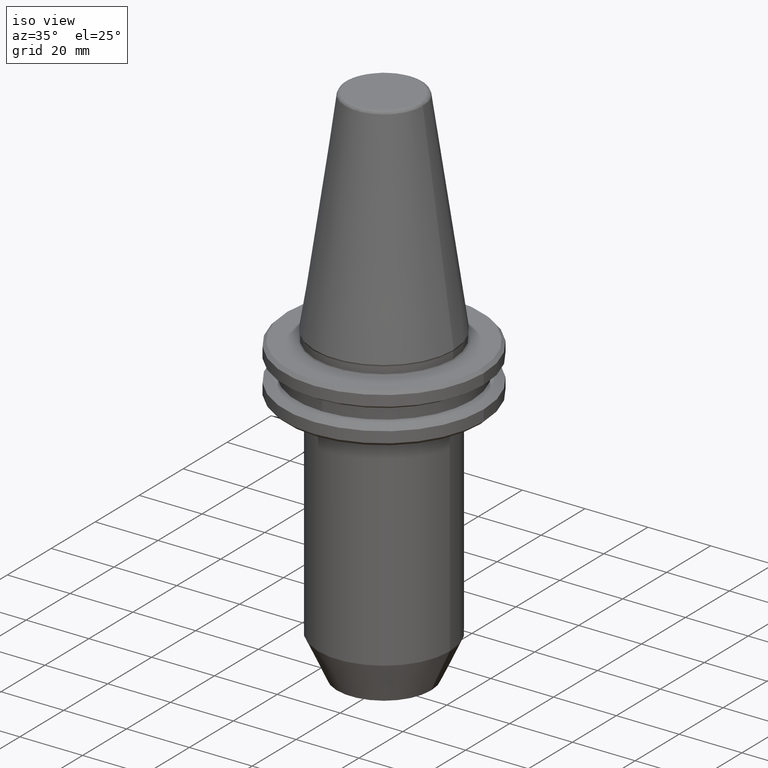
[diagram: clean part render]
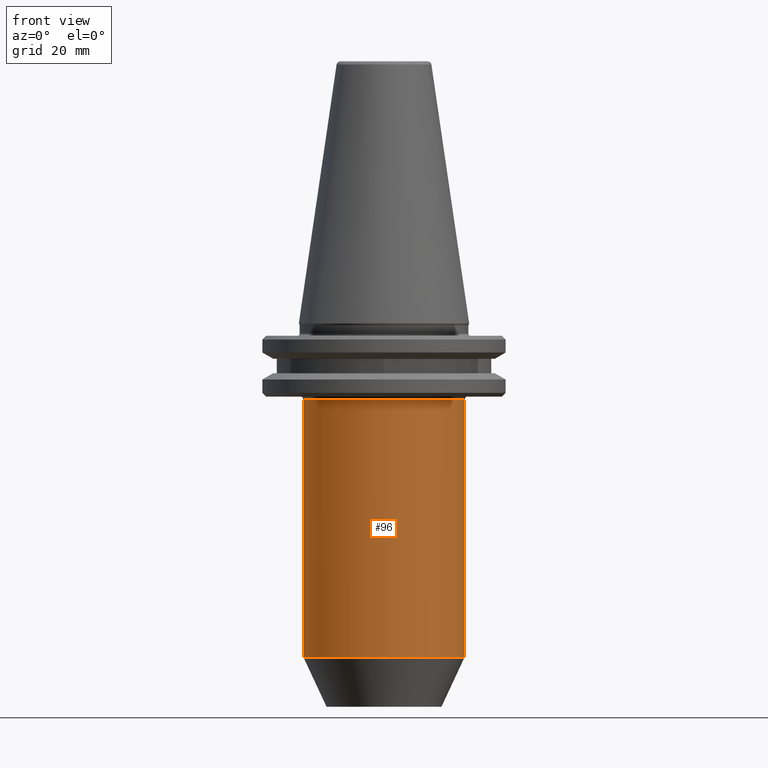
[diagram: tour spotlight — one face highlighted and labeled with its STEP entity id]
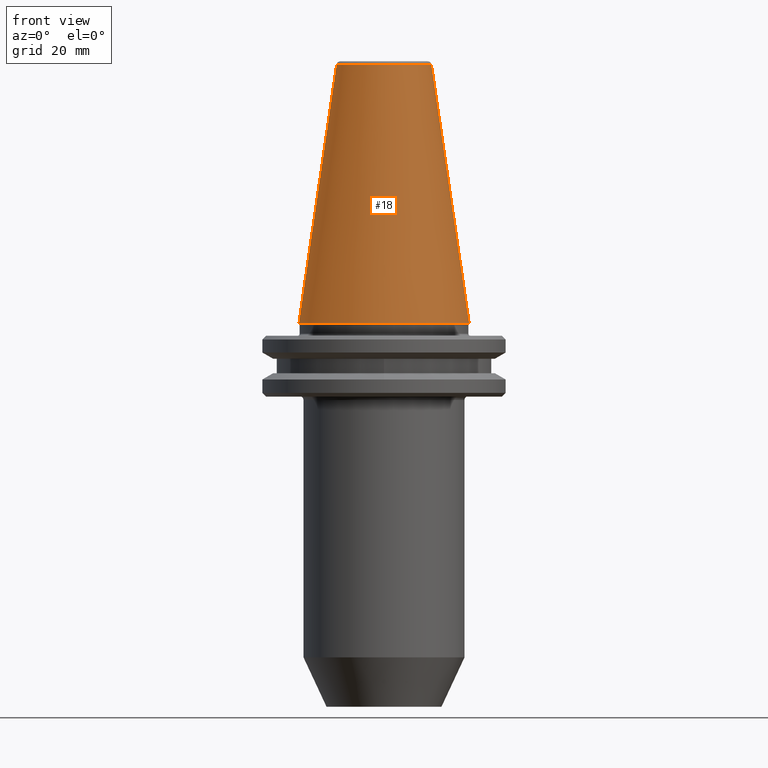
[diagram: tour spotlight — one face highlighted and labeled with its STEP entity id]
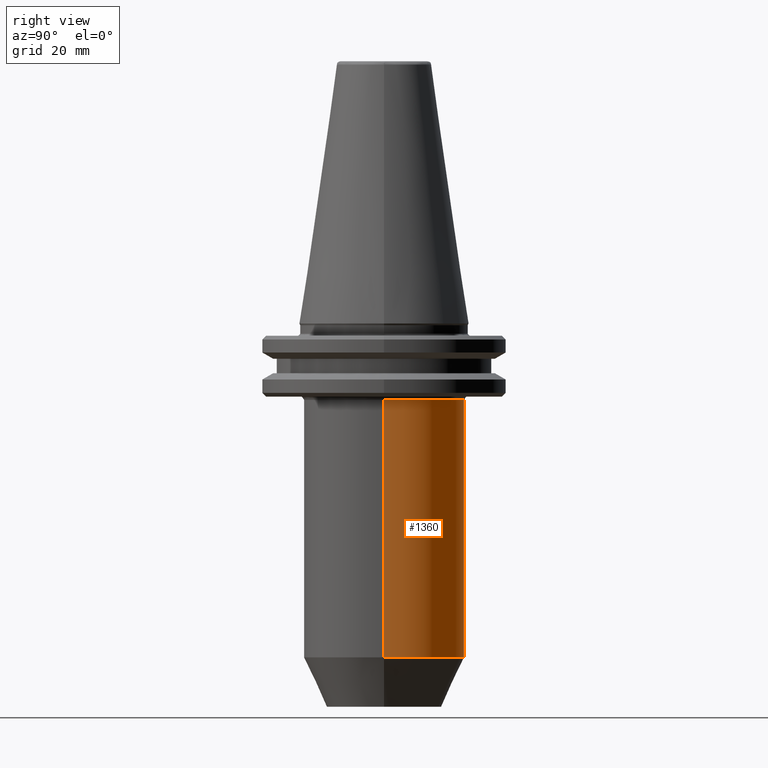
[diagram: tour spotlight — one face highlighted and labeled with its STEP entity id]
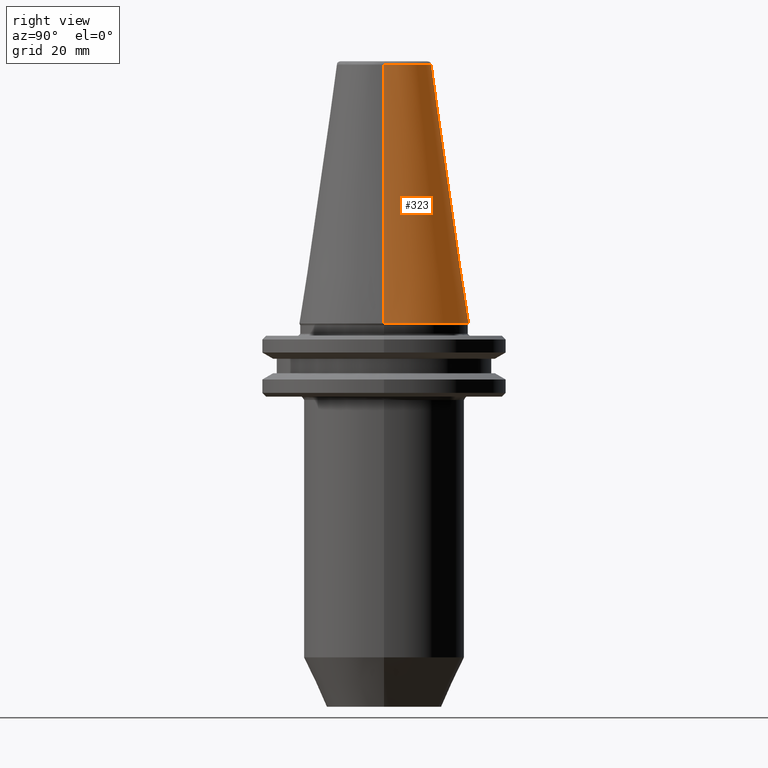
[diagram: tour spotlight — one face highlighted and labeled with its STEP entity id]
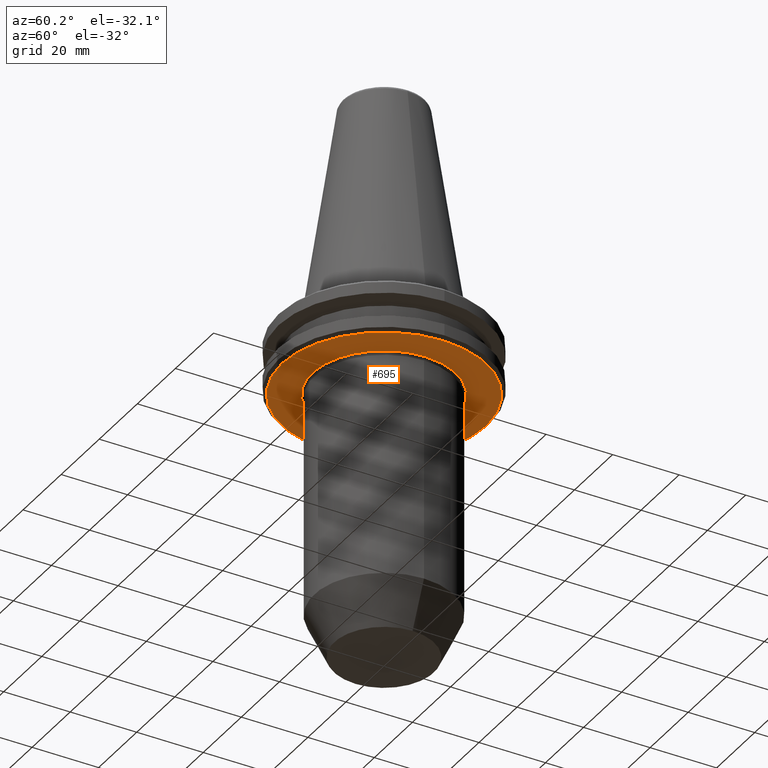
[diagram: tour spotlight — one face highlighted and labeled with its STEP entity id]
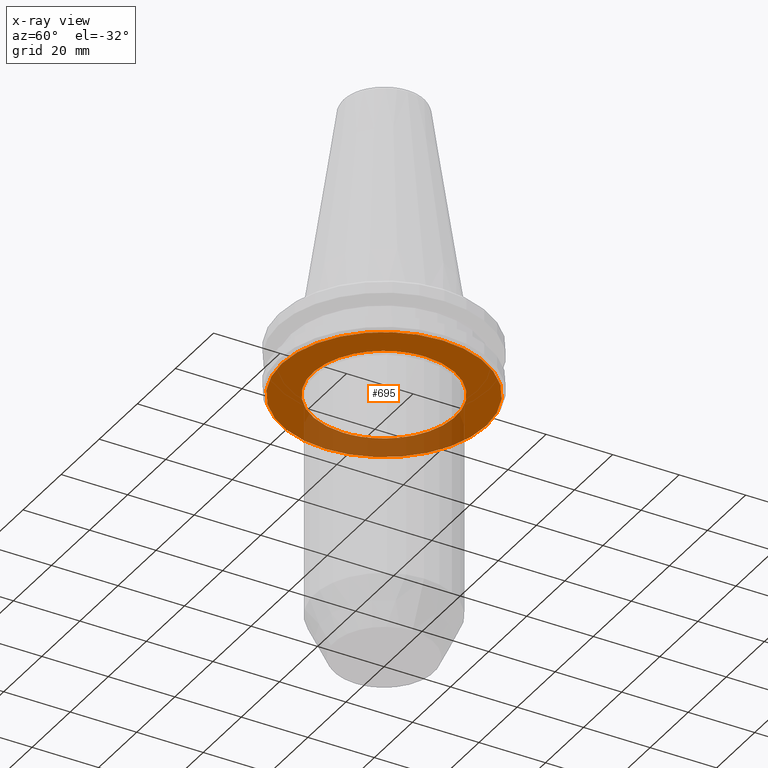
[diagram: x-ray of the same camera — body ghosted, this tour face saturated]
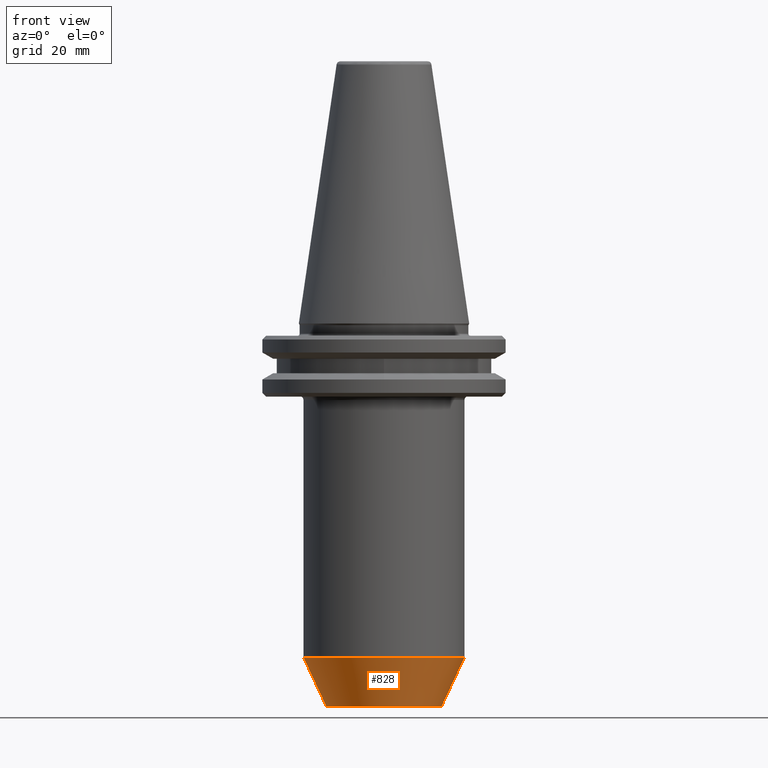
[diagram: tour spotlight — one face highlighted and labeled with its STEP entity id]
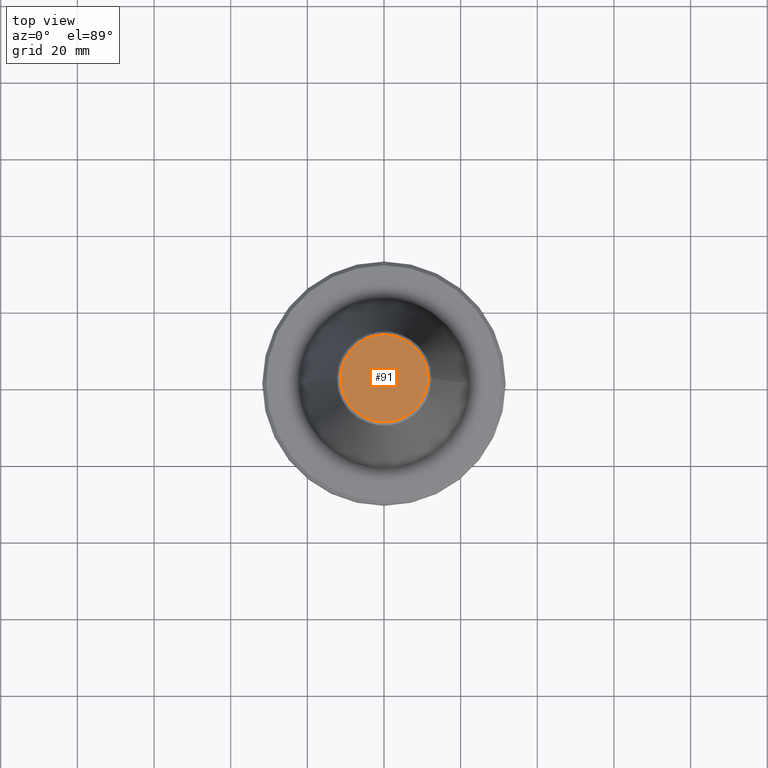
[diagram: tour spotlight — one face highlighted and labeled with its STEP entity id]
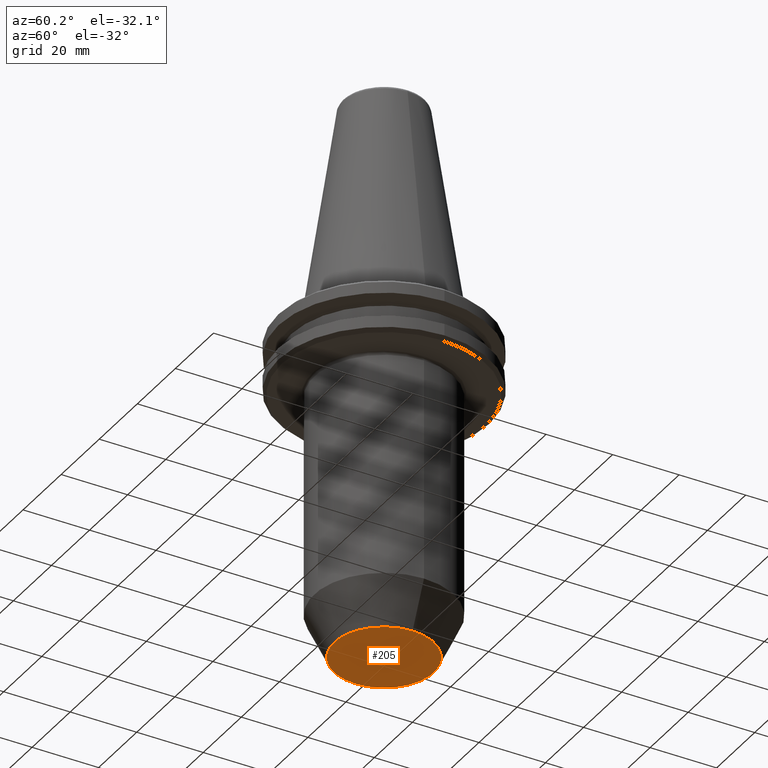
[diagram: tour spotlight — one face highlighted and labeled with its STEP entity id]
A machine part: a face-by-face anatomy tour. The part has 36 B-rep faces; the first image is the clean iso view, then the 8 largest visible faces are spotlighted one at a time (largest first), each with its STEP entity span.

Face 1 — front view, entity #96. In plain terms, the highlighted cylindrical surface (partial cylindrical patch) has radius 21 mm, axis along (0, 0, 1).
Definition (entity closure, byte-faithful):
#24 = CARTESIAN_POINT ( 'NONE',  ( -20.99999999999999300, 2.571758278209440900E-015, -87.13295847700000300 ) ) ;
#28 = DIRECTION ( 'NONE',  ( 1.000000000000000000, 0.0000000000000000000, 0.0000000000000000000 ) ) ;
#29 = DIRECTION ( 'NONE',  ( -0.0000000000000000000, -0.0000000000000000000, -1.000000000000000000 ) ) ;
#32 = CARTESIAN_POINT ( 'NONE',  ( 0.0000000000000000000, 0.0000000000000000000, -19.98284271250540200 ) ) ;
#71 = CYLINDRICAL_SURFACE ( 'NONE', #200, 21.00000000000000000 ) ;
#96 = ADVANCED_FACE ( 'NONE', ( #1032 ), #71, .T. ) ;
#108 = EDGE_CURVE ( 'NONE', #1048, #634, #389, .T. ) ;
#116 = CARTESIAN_POINT ( 'NONE',  ( 20.99999999999999300, 0.0000000000000000000, -87.13295847700000300 ) ) ;
#180 = VERTEX_POINT ( 'NONE', #968 ) ;
#200 = AXIS2_PLACEMENT_3D ( 'NONE', #1237, #1133, #1246 ) ;
#264 = DIRECTION ( 'NONE',  ( 0.0000000000000000000, 0.0000000000000000000, 1.000000000000000000 ) ) ;
#293 = EDGE_CURVE ( 'NONE', #1195, #1048, #697, .T. ) ;
#305 = CARTESIAN_POINT ( 'NONE',  ( 21.00000000015499100, -2.571758278209441700E-015, -19.98284271252224900 ) ) ;
#347 = VECTOR ( 'NONE', #264, 1000.000000000000000 ) ;
#389 = LINE ( 'NONE', #1304, #599 ) ;
#403 = ORIENTED_EDGE ( 'NONE', *, *, #108, .T. ) ;
#549 = EDGE_LOOP ( 'NONE', ( #707, #562, #403, #851 ) ) ;
#562 = ORIENTED_EDGE ( 'NONE', *, *, #293, .T. ) ;
#567 = LINE ( 'NONE', #1320, #347 ) ;
#587 = AXIS2_PLACEMENT_3D ( 'NONE', #921, #919, #918 ) ;
#599 = VECTOR ( 'NONE', #1057, 1000.000000000000000 ) ;
#634 = VERTEX_POINT ( 'NONE', #305 ) ;
#697 = CIRCLE ( 'NONE', #587, 21.00000000000000000 ) ;
#707 = ORIENTED_EDGE ( 'NONE', *, *, #1348, .F. ) ;
#851 = ORIENTED_EDGE ( 'NONE', *, *, #1178, .T. ) ;
#918 = DIRECTION ( 'NONE',  ( 1.000000000000000000, 0.0000000000000000000, 0.0000000000000000000 ) ) ;
#919 = DIRECTION ( 'NONE',  ( 0.0000000000000000000, 0.0000000000000000000, 1.000000000000000000 ) ) ;
#921 = CARTESIAN_POINT ( 'NONE',  ( 0.0000000000000000000, 0.0000000000000000000, -87.13295847700000300 ) ) ;
#940 = AXIS2_PLACEMENT_3D ( 'NONE', #32, #29, #28 ) ;
#968 = CARTESIAN_POINT ( 'NONE',  ( -21.00000000007749900, -5.383947317689280300E-010, -19.98284271253067200 ) ) ;
#1032 = FACE_OUTER_BOUND ( 'NONE', #549, .T. ) ;
#1048 = VERTEX_POINT ( 'NONE', #116 ) ;
#1057 = DIRECTION ( 'NONE',  ( 0.0000000000000000000, 0.0000000000000000000, 1.000000000000000000 ) ) ;
#1133 = DIRECTION ( 'NONE',  ( 0.0000000000000000000, 0.0000000000000000000, 1.000000000000000000 ) ) ;
#1178 = EDGE_CURVE ( 'NONE', #634, #180, #1201, .T. ) ;
#1195 = VERTEX_POINT ( 'NONE', #24 ) ;
#1201 = CIRCLE ( 'NONE', #940, 21.00000000000000000 ) ;
#1237 = CARTESIAN_POINT ( 'NONE',  ( 0.0000000000000000000, 0.0000000000000000000, -87.13295847699998800 ) ) ;
#1246 = DIRECTION ( 'NONE',  ( 1.000000000000000000, 0.0000000000000000000, 0.0000000000000000000 ) ) ;
#1304 = CARTESIAN_POINT ( 'NONE',  ( 21.00000000000000000, 0.0000000000000000000, -87.13295847699998800 ) ) ;
#1320 = CARTESIAN_POINT ( 'NONE',  ( -21.00000000000000000, 2.571758278209441700E-015, -87.13295847699998800 ) ) ;
#1348 = EDGE_CURVE ( 'NONE', #1195, #180, #567, .T. ) ;

Face 2 — front view, entity #18. In plain terms, the highlighted conical surface has half-angle 8.297 deg.
Definition (entity closure, byte-faithful):
#4 = VECTOR ( 'NONE', #321, 1000.000000000000100 ) ;
#18 = ADVANCED_FACE ( 'NONE', ( #399 ), #1258, .T. ) ;
#54 = VERTEX_POINT ( 'NONE', #1157 ) ;
#104 = DIRECTION ( 'NONE',  ( -1.000000000000000000, 0.0000000000000000000, 0.0000000000000000000 ) ) ;
#106 = DIRECTION ( 'NONE',  ( 0.0000000000000000000, 0.0000000000000000000, -1.000000000000000000 ) ) ;
#107 = CARTESIAN_POINT ( 'NONE',  ( 0.0000000000000000000, 0.0000000000000000000, 67.54430822701309000 ) ) ;
#230 = LINE ( 'NONE', #858, #1017 ) ;
#246 = CARTESIAN_POINT ( 'NONE',  ( 0.0000000000000000000, 0.0000000000000000000, 0.0000000000000000000 ) ) ;
#278 = DIRECTION ( 'NONE',  ( 0.0000000000000000000, 0.0000000000000000000, -1.000000000000000000 ) ) ;
#306 = CARTESIAN_POINT ( 'NONE',  ( 22.22499999999999400, 2.721777511104992100E-015, 0.0000000000000000000 ) ) ;
#312 = AXIS2_PLACEMENT_3D ( 'NONE', #1269, #278, #1166 ) ;
#317 = DIRECTION ( 'NONE',  ( 1.000000000000000000, 0.0000000000000000000, -2.683064993777401700E-017 ) ) ;
#321 = DIRECTION ( 'NONE',  ( 0.1443082272694599400, 1.767266086161729200E-017, -0.9895327864918603800 ) ) ;
#399 = FACE_OUTER_BOUND ( 'NONE', #795, .T. ) ;
#433 = EDGE_CURVE ( 'NONE', #453, #1365, #230, .T. ) ;
#448 = AXIS2_PLACEMENT_3D ( 'NONE', #246, #539, #317 ) ;
#453 = VERTEX_POINT ( 'NONE', #628 ) ;
#539 = DIRECTION ( 'NONE',  ( -0.0000000000000000000, -0.0000000000000000000, -1.000000000000000000 ) ) ;
#575 = AXIS2_PLACEMENT_3D ( 'NONE', #107, #106, #104 ) ;
#617 = EDGE_CURVE ( 'NONE', #54, #1173, #1335, .T. ) ;
#628 = CARTESIAN_POINT ( 'NONE',  ( -12.37469537596833500, 0.0000000000000000000, 67.54430822699872300 ) ) ;
#776 = CARTESIAN_POINT ( 'NONE',  ( 22.22499999999999400, 2.721777511104992100E-015, 0.0000000000000000000 ) ) ;
#795 = EDGE_LOOP ( 'NONE', ( #1193, #1131, #1330, #1245 ) ) ;
#855 = DIRECTION ( 'NONE',  ( -0.1443082272694599400, 0.0000000000000000000, -0.9895327864918603800 ) ) ;
#858 = CARTESIAN_POINT ( 'NONE',  ( -22.22499999999999400, 0.0000000000000000000, 0.0000000000000000000 ) ) ;
#927 = CIRCLE ( 'NONE', #448, 22.22499999999999800 ) ;
#931 = CARTESIAN_POINT ( 'NONE',  ( -22.22499999999999400, 0.0000000000000000000, 0.0000000000000000000 ) ) ;
#1017 = VECTOR ( 'NONE', #855, 1000.000000000000100 ) ;
#1055 = EDGE_CURVE ( 'NONE', #54, #453, #1306, .T. ) ;
#1131 = ORIENTED_EDGE ( 'NONE', *, *, #1055, .T. ) ;
#1157 = CARTESIAN_POINT ( 'NONE',  ( 12.37469537596738400, -3.807138672817975900E-009, 67.54430822700526000 ) ) ;
#1166 = DIRECTION ( 'NONE',  ( -1.000000000000000000, 0.0000000000000000000, 0.0000000000000000000 ) ) ;
#1173 = VERTEX_POINT ( 'NONE', #776 ) ;
#1193 = ORIENTED_EDGE ( 'NONE', *, *, #617, .F. ) ;
#1245 = ORIENTED_EDGE ( 'NONE', *, *, #1305, .F. ) ;
#1258 = CONICAL_SURFACE ( 'NONE', #312, 22.22499999999999400, 0.1448138465495947800 ) ;
#1269 = CARTESIAN_POINT ( 'NONE',  ( 0.0000000000000000000, 0.0000000000000000000, 0.0000000000000000000 ) ) ;
#1305 = EDGE_CURVE ( 'NONE', #1173, #1365, #927, .T. ) ;
#1306 = CIRCLE ( 'NONE', #575, 12.37469537599809200 ) ;
#1330 = ORIENTED_EDGE ( 'NONE', *, *, #433, .T. ) ;
#1335 = LINE ( 'NONE', #306, #4 ) ;
#1365 = VERTEX_POINT ( 'NONE', #931 ) ;

Face 3 — right view, entity #1360. In plain terms, the highlighted cylindrical surface (partial cylindrical patch) has radius 21 mm, axis along (0, 0, 1).
Definition (entity closure, byte-faithful):
#24 = CARTESIAN_POINT ( 'NONE',  ( -20.99999999999999300, 2.571758278209440900E-015, -87.13295847700000300 ) ) ;
#36 = DIRECTION ( 'NONE',  ( 1.000000000000000000, 0.0000000000000000000, 0.0000000000000000000 ) ) ;
#37 = DIRECTION ( 'NONE',  ( -0.0000000000000000000, -0.0000000000000000000, -1.000000000000000000 ) ) ;
#41 = CARTESIAN_POINT ( 'NONE',  ( 0.0000000000000000000, 0.0000000000000000000, -19.98284271253909900 ) ) ;
#108 = EDGE_CURVE ( 'NONE', #1048, #634, #389, .T. ) ;
#116 = CARTESIAN_POINT ( 'NONE',  ( 20.99999999999999300, 0.0000000000000000000, -87.13295847700000300 ) ) ;
#121 = CYLINDRICAL_SURFACE ( 'NONE', #1291, 21.00000000000000000 ) ;
#135 = AXIS2_PLACEMENT_3D ( 'NONE', #41, #37, #36 ) ;
#162 = CIRCLE ( 'NONE', #192, 21.00000000000000000 ) ;
#180 = VERTEX_POINT ( 'NONE', #968 ) ;
#192 = AXIS2_PLACEMENT_3D ( 'NONE', #591, #590, #588 ) ;
#207 = FACE_OUTER_BOUND ( 'NONE', #781, .T. ) ;
#264 = DIRECTION ( 'NONE',  ( 0.0000000000000000000, 0.0000000000000000000, 1.000000000000000000 ) ) ;
#305 = CARTESIAN_POINT ( 'NONE',  ( 21.00000000015499100, -2.571758278209441700E-015, -19.98284271252224900 ) ) ;
#347 = VECTOR ( 'NONE', #264, 1000.000000000000000 ) ;
#389 = LINE ( 'NONE', #1304, #599 ) ;
#523 = EDGE_CURVE ( 'NONE', #1048, #1195, #162, .T. ) ;
#567 = LINE ( 'NONE', #1320, #347 ) ;
#588 = DIRECTION ( 'NONE',  ( 1.000000000000000000, 0.0000000000000000000, 0.0000000000000000000 ) ) ;
#590 = DIRECTION ( 'NONE',  ( 0.0000000000000000000, 0.0000000000000000000, 1.000000000000000000 ) ) ;
#591 = CARTESIAN_POINT ( 'NONE',  ( 0.0000000000000000000, 0.0000000000000000000, -87.13295847700000300 ) ) ;
#599 = VECTOR ( 'NONE', #1057, 1000.000000000000000 ) ;
#610 = ORIENTED_EDGE ( 'NONE', *, *, #1165, .T. ) ;
#634 = VERTEX_POINT ( 'NONE', #305 ) ;
#727 = ORIENTED_EDGE ( 'NONE', *, *, #108, .F. ) ;
#781 = EDGE_LOOP ( 'NONE', ( #1060, #1310, #610, #727 ) ) ;
#968 = CARTESIAN_POINT ( 'NONE',  ( -21.00000000007749900, -5.383947317689280300E-010, -19.98284271253067200 ) ) ;
#1000 = DIRECTION ( 'NONE',  ( 1.000000000000000000, 0.0000000000000000000, 0.0000000000000000000 ) ) ;
#1048 = VERTEX_POINT ( 'NONE', #116 ) ;
#1057 = DIRECTION ( 'NONE',  ( 0.0000000000000000000, 0.0000000000000000000, 1.000000000000000000 ) ) ;
#1060 = ORIENTED_EDGE ( 'NONE', *, *, #523, .T. ) ;
#1165 = EDGE_CURVE ( 'NONE', #180, #634, #1188, .T. ) ;
#1188 = CIRCLE ( 'NONE', #135, 21.00000000000000000 ) ;
#1190 = DIRECTION ( 'NONE',  ( 0.0000000000000000000, 0.0000000000000000000, 1.000000000000000000 ) ) ;
#1195 = VERTEX_POINT ( 'NONE', #24 ) ;
#1291 = AXIS2_PLACEMENT_3D ( 'NONE', #1319, #1190, #1000 ) ;
#1304 = CARTESIAN_POINT ( 'NONE',  ( 21.00000000000000000, 0.0000000000000000000, -87.13295847699998800 ) ) ;
#1310 = ORIENTED_EDGE ( 'NONE', *, *, #1348, .T. ) ;
#1319 = CARTESIAN_POINT ( 'NONE',  ( 0.0000000000000000000, 0.0000000000000000000, -87.13295847699998800 ) ) ;
#1320 = CARTESIAN_POINT ( 'NONE',  ( -21.00000000000000000, 2.571758278209441700E-015, -87.13295847699998800 ) ) ;
#1348 = EDGE_CURVE ( 'NONE', #1195, #180, #567, .T. ) ;
#1360 = ADVANCED_FACE ( 'NONE', ( #207 ), #121, .T. ) ;

Face 4 — right view, entity #323. In plain terms, the highlighted conical surface has half-angle 8.297 deg.
Definition (entity closure, byte-faithful):
#1 = FACE_OUTER_BOUND ( 'NONE', #1373, .T. ) ;
#3 = CARTESIAN_POINT ( 'NONE',  ( 0.0000000000000000000, 0.0000000000000000000, 0.0000000000000000000 ) ) ;
#4 = VECTOR ( 'NONE', #321, 1000.000000000000100 ) ;
#54 = VERTEX_POINT ( 'NONE', #1157 ) ;
#230 = LINE ( 'NONE', #858, #1017 ) ;
#237 = AXIS2_PLACEMENT_3D ( 'NONE', #3, #964, #782 ) ;
#298 = ORIENTED_EDGE ( 'NONE', *, *, #1336, .T. ) ;
#306 = CARTESIAN_POINT ( 'NONE',  ( 22.22499999999999400, 2.721777511104992100E-015, 0.0000000000000000000 ) ) ;
#321 = DIRECTION ( 'NONE',  ( 0.1443082272694599400, 1.767266086161729200E-017, -0.9895327864918603800 ) ) ;
#323 = ADVANCED_FACE ( 'NONE', ( #1 ), #698, .T. ) ;
#340 = DIRECTION ( 'NONE',  ( 0.0000000000000000000, 0.0000000000000000000, -1.000000000000000000 ) ) ;
#392 = CIRCLE ( 'NONE', #1150, 12.37469537600000400 ) ;
#433 = EDGE_CURVE ( 'NONE', #453, #1365, #230, .T. ) ;
#453 = VERTEX_POINT ( 'NONE', #628 ) ;
#613 = CARTESIAN_POINT ( 'NONE',  ( 0.0000000000000000000, 0.0000000000000000000, 67.54430822699998800 ) ) ;
#617 = EDGE_CURVE ( 'NONE', #54, #1173, #1335, .T. ) ;
#628 = CARTESIAN_POINT ( 'NONE',  ( -12.37469537596833500, 0.0000000000000000000, 67.54430822699872300 ) ) ;
#687 = DIRECTION ( 'NONE',  ( -1.000000000000000000, 0.0000000000000000000, 0.0000000000000000000 ) ) ;
#698 = CONICAL_SURFACE ( 'NONE', #867, 22.22499999999999400, 0.1448138465495947800 ) ;
#776 = CARTESIAN_POINT ( 'NONE',  ( 22.22499999999999400, 2.721777511104992100E-015, 0.0000000000000000000 ) ) ;
#782 = DIRECTION ( 'NONE',  ( 1.000000000000000000, 0.0000000000000000000, -2.683064993777401700E-017 ) ) ;
#855 = DIRECTION ( 'NONE',  ( -0.1443082272694599400, 0.0000000000000000000, -0.9895327864918603800 ) ) ;
#858 = CARTESIAN_POINT ( 'NONE',  ( -22.22499999999999400, 0.0000000000000000000, 0.0000000000000000000 ) ) ;
#867 = AXIS2_PLACEMENT_3D ( 'NONE', #902, #904, #906 ) ;
#902 = CARTESIAN_POINT ( 'NONE',  ( 0.0000000000000000000, 0.0000000000000000000, 0.0000000000000000000 ) ) ;
#904 = DIRECTION ( 'NONE',  ( 0.0000000000000000000, 0.0000000000000000000, -1.000000000000000000 ) ) ;
#906 = DIRECTION ( 'NONE',  ( -1.000000000000000000, 0.0000000000000000000, 0.0000000000000000000 ) ) ;
#931 = CARTESIAN_POINT ( 'NONE',  ( -22.22499999999999400, 0.0000000000000000000, 0.0000000000000000000 ) ) ;
#964 = DIRECTION ( 'NONE',  ( -0.0000000000000000000, -0.0000000000000000000, -1.000000000000000000 ) ) ;
#973 = ORIENTED_EDGE ( 'NONE', *, *, #433, .F. ) ;
#1017 = VECTOR ( 'NONE', #855, 1000.000000000000100 ) ;
#1150 = AXIS2_PLACEMENT_3D ( 'NONE', #613, #340, #687 ) ;
#1157 = CARTESIAN_POINT ( 'NONE',  ( 12.37469537596738400, -3.807138672817975900E-009, 67.54430822700526000 ) ) ;
#1173 = VERTEX_POINT ( 'NONE', #776 ) ;
#1177 = CIRCLE ( 'NONE', #237, 22.22499999999999800 ) ;
#1225 = EDGE_CURVE ( 'NONE', #1365, #1173, #1177, .T. ) ;
#1253 = ORIENTED_EDGE ( 'NONE', *, *, #617, .T. ) ;
#1335 = LINE ( 'NONE', #306, #4 ) ;
#1336 = EDGE_CURVE ( 'NONE', #453, #54, #392, .T. ) ;
#1363 = ORIENTED_EDGE ( 'NONE', *, *, #1225, .F. ) ;
#1365 = VERTEX_POINT ( 'NONE', #931 ) ;
#1373 = EDGE_LOOP ( 'NONE', ( #298, #1253, #1363, #973 ) ) ;

Face 5 — auxiliary view, entity #695. An x-ray twin of the same camera follows (body ghosted, this face saturated) — the face is partly hidden behind the body. In plain terms, the highlighted planar face has unit normal (0, 0, -1).
Definition (entity closure, byte-faithful):
#22 =( BOUNDED_CURVE ( )  B_SPLINE_CURVE ( 3, ( #316, #318, #313, #311 ),
 .UNSPECIFIED., .F., .F. ) 
 B_SPLINE_CURVE_WITH_KNOTS ( ( 4, 4 ),
 ( 7.271624088167829200E-019, 0.06820225635938215200 ),
 .UNSPECIFIED. ) 
 CURVE ( )  GEOMETRIC_REPRESENTATION_ITEM ( )  RATIONAL_B_SPLINE_CURVE ( ( 0.9700138577846751900, 0.3233379525948914000, 0.3233379525948914000, 0.9700138577846751900 ) ) 
 REPRESENTATION_ITEM ( '' )  );
#97 = FACE_BOUND ( 'NONE', #1228, .T. ) ;
#144 = VERTEX_POINT ( 'NONE', #1031 ) ;
#209 = DIRECTION ( 'NONE',  ( 1.000000000000000000, 0.0000000000000000000, 0.0000000000000000000 ) ) ;
#211 = DIRECTION ( 'NONE',  ( -0.0000000000000000000, -0.0000000000000000000, 1.000000000000000000 ) ) ;
#213 = CARTESIAN_POINT ( 'NONE',  ( 0.0000000000000000000, 0.0000000000000000000, -19.10000000000006200 ) ) ;
#267 = VERTEX_POINT ( 'NONE', #1020 ) ;
#281 = DIRECTION ( 'NONE',  ( -1.000000000000000000, 0.0000000000000000000, -0.0000000000000000000 ) ) ;
#285 = DIRECTION ( 'NONE',  ( 0.0000000000000000000, 0.0000000000000000000, -1.000000000000000000 ) ) ;
#286 = PLANE ( 'NONE',  #731 ) ;
#297 = CARTESIAN_POINT ( 'NONE',  ( 29.85996502400000800, -30.95132634999999900, -19.10000000000000100 ) ) ;
#311 = CARTESIAN_POINT ( 'NONE',  ( 21.53033123896916800, 0.0000000000000000000, -19.09999999994861100 ) ) ;
#313 = CARTESIAN_POINT ( 'NONE',  ( 21.53033123887257000, -43.06066247772788100, -19.10000000000000500 ) ) ;
#316 = CARTESIAN_POINT ( 'NONE',  ( -21.53033123887257000, -4.415935852031731000E-010, -19.10000000000000100 ) ) ;
#318 = CARTESIAN_POINT ( 'NONE',  ( -21.53033123887257000, -43.06066247772788100, -19.10000000000000500 ) ) ;
#331 = EDGE_CURVE ( 'NONE', #144, #1125, #1185, .T. ) ;
#344 = CIRCLE ( 'NONE', #607, 30.75000000000072100 ) ;
#406 = VERTEX_POINT ( 'NONE', #875 ) ;
#434 = DIRECTION ( 'NONE',  ( -0.0000000000000000000, -0.0000000000000000000, 1.000000000000000000 ) ) ;
#592 = ORIENTED_EDGE ( 'NONE', *, *, #627, .T. ) ;
#607 = AXIS2_PLACEMENT_3D ( 'NONE', #213, #211, #209 ) ;
#627 = EDGE_CURVE ( 'NONE', #1125, #144, #22, .T. ) ;
#660 = CARTESIAN_POINT ( 'NONE',  ( -21.53033123887257000, -4.415935852031731000E-010, -19.10000000000000100 ) ) ;
#695 = ADVANCED_FACE ( 'NONE', ( #97, #1316 ), #286, .T. ) ;
#731 = AXIS2_PLACEMENT_3D ( 'NONE', #297, #285, #281 ) ;
#875 = CARTESIAN_POINT ( 'NONE',  ( 30.75000000000072100, 0.0000000000000000000, -19.10000000000006200 ) ) ;
#882 = CARTESIAN_POINT ( 'NONE',  ( -21.53033123887257400, -4.415935852031731000E-010, -19.10000000000000100 ) ) ;
#884 = CARTESIAN_POINT ( 'NONE',  ( -21.53033123887258400, 43.06066247772788800, -19.10000000000000500 ) ) ;
#896 = CARTESIAN_POINT ( 'NONE',  ( 21.53033123896916800, 0.0000000000000000000, -19.09999999994861100 ) ) ;
#900 = CARTESIAN_POINT ( 'NONE',  ( 21.53033123887258400, 43.06066247772788800, -19.10000000000000500 ) ) ;
#905 = ORIENTED_EDGE ( 'NONE', *, *, #1243, .F. ) ;
#924 = EDGE_CURVE ( 'NONE', #267, #406, #344, .T. ) ;
#937 = CARTESIAN_POINT ( 'NONE',  ( 0.0000000000000000000, 0.0000000000000000000, -19.10000000000006200 ) ) ;
#1020 = CARTESIAN_POINT ( 'NONE',  ( -30.75000000000072100, 3.827021247203795100E-015, -19.10000000000006200 ) ) ;
#1031 = CARTESIAN_POINT ( 'NONE',  ( 21.53033123896916800, 0.0000000000000000000, -19.09999999994861100 ) ) ;
#1088 = DIRECTION ( 'NONE',  ( 1.000000000000000000, 0.0000000000000000000, 0.0000000000000000000 ) ) ;
#1113 = ORIENTED_EDGE ( 'NONE', *, *, #331, .T. ) ;
#1125 = VERTEX_POINT ( 'NONE', #660 ) ;
#1185 =( BOUNDED_CURVE ( )  B_SPLINE_CURVE ( 3, ( #896, #900, #884, #882 ),
 .UNSPECIFIED., .F., .F. ) 
 B_SPLINE_CURVE_WITH_KNOTS ( ( 4, 4 ),
 ( 4.491350419349716500E-015, 0.06820225636030498300 ),
 .UNSPECIFIED. ) 
 CURVE ( )  GEOMETRIC_REPRESENTATION_ITEM ( )  RATIONAL_B_SPLINE_CURVE ( ( 0.9700138577846765300, 0.3233379525948918400, 0.3233379525948918400, 0.9700138577846765300 ) ) 
 REPRESENTATION_ITEM ( '' )  );
#1228 = EDGE_LOOP ( 'NONE', ( #1113, #592 ) ) ;
#1243 = EDGE_CURVE ( 'NONE', #406, #267, #1248, .T. ) ;
#1248 = CIRCLE ( 'NONE', #1334, 30.75000000000072100 ) ;
#1255 = EDGE_LOOP ( 'NONE', ( #905, #1372 ) ) ;
#1316 = FACE_OUTER_BOUND ( 'NONE', #1255, .T. ) ;
#1334 = AXIS2_PLACEMENT_3D ( 'NONE', #937, #434, #1088 ) ;
#1372 = ORIENTED_EDGE ( 'NONE', *, *, #924, .F. ) ;

Face 6 — front view, entity #828. In plain terms, the highlighted conical surface has half-angle 25 deg.
Definition (entity closure, byte-faithful):
#24 = CARTESIAN_POINT ( 'NONE',  ( -20.99999999999999300, 2.571758278209440900E-015, -87.13295847700000300 ) ) ;
#64 = EDGE_CURVE ( 'NONE', #693, #1048, #768, .T. ) ;
#73 = EDGE_CURVE ( 'NONE', #342, #1195, #965, .T. ) ;
#88 = ORIENTED_EDGE ( 'NONE', *, *, #73, .F. ) ;
#100 = EDGE_LOOP ( 'NONE', ( #88, #226, #1026, #461 ) ) ;
#116 = CARTESIAN_POINT ( 'NONE',  ( 20.99999999999999300, 0.0000000000000000000, -87.13295847700000300 ) ) ;
#226 = ORIENTED_EDGE ( 'NONE', *, *, #460, .T. ) ;
#247 = DIRECTION ( 'NONE',  ( 1.000000000000000000, 0.0000000000000000000, 0.0000000000000000000 ) ) ;
#253 = CARTESIAN_POINT ( 'NONE',  ( 0.0000000000000000000, 0.0000000000000000000, -87.13295847700000300 ) ) ;
#256 = DIRECTION ( 'NONE',  ( 0.0000000000000000000, 0.0000000000000000000, 1.000000000000000000 ) ) ;
#290 = CARTESIAN_POINT ( 'NONE',  ( 14.99999999999996100, 0.0000000000000000000, -100.0000000000000900 ) ) ;
#293 = EDGE_CURVE ( 'NONE', #1195, #1048, #697, .T. ) ;
#342 = VERTEX_POINT ( 'NONE', #413 ) ;
#413 = CARTESIAN_POINT ( 'NONE',  ( -14.99999999999996100, 2.204364238465233100E-015, -100.0000000000000900 ) ) ;
#460 = EDGE_CURVE ( 'NONE', #342, #693, #893, .T. ) ;
#461 = ORIENTED_EDGE ( 'NONE', *, *, #293, .F. ) ;
#587 = AXIS2_PLACEMENT_3D ( 'NONE', #921, #919, #918 ) ;
#616 = DIRECTION ( 'NONE',  ( 0.0000000000000000000, 0.0000000000000000000, 1.000000000000000000 ) ) ;
#618 = CARTESIAN_POINT ( 'NONE',  ( 0.0000000000000000000, 0.0000000000000000000, -100.0000000000000900 ) ) ;
#693 = VERTEX_POINT ( 'NONE', #290 ) ;
#697 = CIRCLE ( 'NONE', #587, 21.00000000000000000 ) ;
#736 = FACE_OUTER_BOUND ( 'NONE', #100, .T. ) ;
#768 = LINE ( 'NONE', #1329, #1366 ) ;
#828 = ADVANCED_FACE ( 'NONE', ( #736 ), #1364, .T. ) ;
#893 = CIRCLE ( 'NONE', #1298, 14.99999999999996100 ) ;
#918 = DIRECTION ( 'NONE',  ( 1.000000000000000000, 0.0000000000000000000, 0.0000000000000000000 ) ) ;
#919 = DIRECTION ( 'NONE',  ( 0.0000000000000000000, 0.0000000000000000000, 1.000000000000000000 ) ) ;
#921 = CARTESIAN_POINT ( 'NONE',  ( 0.0000000000000000000, 0.0000000000000000000, -87.13295847700000300 ) ) ;
#965 = LINE ( 'NONE', #1149, #1132 ) ;
#1026 = ORIENTED_EDGE ( 'NONE', *, *, #64, .T. ) ;
#1030 = AXIS2_PLACEMENT_3D ( 'NONE', #253, #256, #247 ) ;
#1048 = VERTEX_POINT ( 'NONE', #116 ) ;
#1104 = DIRECTION ( 'NONE',  ( 1.000000000000000000, 0.0000000000000000000, 0.0000000000000000000 ) ) ;
#1132 = VECTOR ( 'NONE', #1295, 1000.000000000000000 ) ;
#1149 = CARTESIAN_POINT ( 'NONE',  ( -20.99999999999999300, 2.571758278209440900E-015, -87.13295847700000300 ) ) ;
#1195 = VERTEX_POINT ( 'NONE', #24 ) ;
#1290 = DIRECTION ( 'NONE',  ( 0.4226182617422463700, 0.0000000000000000000, 0.9063077870359286200 ) ) ;
#1295 = DIRECTION ( 'NONE',  ( -0.4226182617422463700, 5.175581015038603100E-017, 0.9063077870359286200 ) ) ;
#1298 = AXIS2_PLACEMENT_3D ( 'NONE', #618, #616, #1104 ) ;
#1329 = CARTESIAN_POINT ( 'NONE',  ( 20.99999999999999300, 0.0000000000000000000, -87.13295847700000300 ) ) ;
#1364 = CONICAL_SURFACE ( 'NONE', #1030, 20.99999999999999300, 0.4363323130002892400 ) ;
#1366 = VECTOR ( 'NONE', #1290, 1000.000000000000000 ) ;

Face 7 — top view, entity #91. In plain terms, the highlighted planar face has unit normal (0, 0, 1).
Definition (entity closure, byte-faithful):
#74 = VERTEX_POINT ( 'NONE', #1145 ) ;
#91 = ADVANCED_FACE ( 'NONE', ( #1222 ), #1272, .T. ) ;
#95 = CARTESIAN_POINT ( 'NONE',  ( -11.38516258738788200, 0.0000000000000000000, 68.39999999982889300 ) ) ;
#259 = CARTESIAN_POINT ( 'NONE',  ( 11.38516258738788000, -7.005409735188728800E-010, 68.39999999982889300 ) ) ;
#260 = CARTESIAN_POINT ( 'NONE',  ( 11.38516258736446900, 22.77032517488440200, 68.39999999971480800 ) ) ;
#268 = CARTESIAN_POINT ( 'NONE',  ( -11.38516258736446900, 22.77032517488440200, 68.39999999971480800 ) ) ;
#279 = CARTESIAN_POINT ( 'NONE',  ( -11.38516258738788200, 0.0000000000000000000, 68.39999999982889300 ) ) ;
#390 = EDGE_CURVE ( 'NONE', #74, #1098, #1292, .T. ) ;
#508 = EDGE_LOOP ( 'NONE', ( #994, #783 ) ) ;
#769 = EDGE_CURVE ( 'NONE', #1098, #74, #1050, .T. ) ;
#783 = ORIENTED_EDGE ( 'NONE', *, *, #390, .F. ) ;
#870 = CARTESIAN_POINT ( 'NONE',  ( -11.38516258738788200, 0.0000000000000000000, 68.39999999982889300 ) ) ;
#873 = CARTESIAN_POINT ( 'NONE',  ( -11.38516258736446900, -22.77032517488440200, 68.39999999971479400 ) ) ;
#876 = CARTESIAN_POINT ( 'NONE',  ( 11.38516258736446900, -22.77032517488440200, 68.39999999971479400 ) ) ;
#879 = CARTESIAN_POINT ( 'NONE',  ( 11.38516258738787800, -7.005409735188728800E-010, 68.39999999982889300 ) ) ;
#994 = ORIENTED_EDGE ( 'NONE', *, *, #769, .F. ) ;
#1050 =( BOUNDED_CURVE ( )  B_SPLINE_CURVE ( 3, ( #279, #268, #260, #259 ),
 .UNSPECIFIED., .F., .F. ) 
 B_SPLINE_CURVE_WITH_KNOTS ( ( 4, 4 ),
 ( 0.0000000000000000000, 1.000000000000000000 ),
 .UNSPECIFIED. ) 
 CURVE ( )  GEOMETRIC_REPRESENTATION_ITEM ( )  RATIONAL_B_SPLINE_CURVE ( ( 0.9606698264625278500, 0.3202232754875091200, 0.3202232754875091200, 0.9606698264625278500 ) ) 
 REPRESENTATION_ITEM ( '' )  );
#1058 = CARTESIAN_POINT ( 'NONE',  ( -11.52178454100000100, -11.52178454100000100, 68.40000000000000600 ) ) ;
#1098 = VERTEX_POINT ( 'NONE', #95 ) ;
#1140 = AXIS2_PLACEMENT_3D ( 'NONE', #1058, #1371, #1349 ) ;
#1145 = CARTESIAN_POINT ( 'NONE',  ( 11.38516258738788000, -7.005409735188728800E-010, 68.39999999982889300 ) ) ;
#1222 = FACE_OUTER_BOUND ( 'NONE', #508, .T. ) ;
#1272 = PLANE ( 'NONE',  #1140 ) ;
#1292 =( BOUNDED_CURVE ( )  B_SPLINE_CURVE ( 3, ( #879, #876, #873, #870 ),
 .UNSPECIFIED., .F., .F. ) 
 B_SPLINE_CURVE_WITH_KNOTS ( ( 4, 4 ),
 ( 0.0000000000000000000, 1.000000000000000000 ),
 .UNSPECIFIED. ) 
 CURVE ( )  GEOMETRIC_REPRESENTATION_ITEM ( )  RATIONAL_B_SPLINE_CURVE ( ( 0.9606698264625276300, 0.3202232754875091200, 0.3202232754875091200, 0.9606698264625276300 ) ) 
 REPRESENTATION_ITEM ( '' )  );
#1349 = DIRECTION ( 'NONE',  ( 1.000000000000000000, 0.0000000000000000000, -0.0000000000000000000 ) ) ;
#1371 = DIRECTION ( 'NONE',  ( 0.0000000000000000000, 0.0000000000000000000, 1.000000000000000000 ) ) ;

Face 8 — auxiliary view, entity #205. In plain terms, the highlighted planar face has unit normal (0, 0, 1).
Definition (entity closure, byte-faithful):
#205 = ADVANCED_FACE ( 'NONE', ( #912 ), #963, .F. ) ;
#290 = CARTESIAN_POINT ( 'NONE',  ( 14.99999999999996100, 0.0000000000000000000, -100.0000000000000900 ) ) ;
#342 = VERTEX_POINT ( 'NONE', #413 ) ;
#365 = AXIS2_PLACEMENT_3D ( 'NONE', #1308, #872, #1368 ) ;
#413 = CARTESIAN_POINT ( 'NONE',  ( -14.99999999999996100, 2.204364238465233100E-015, -100.0000000000000900 ) ) ;
#442 = EDGE_LOOP ( 'NONE', ( #578, #988 ) ) ;
#460 = EDGE_CURVE ( 'NONE', #342, #693, #893, .T. ) ;
#578 = ORIENTED_EDGE ( 'NONE', *, *, #1252, .F. ) ;
#616 = DIRECTION ( 'NONE',  ( 0.0000000000000000000, 0.0000000000000000000, 1.000000000000000000 ) ) ;
#618 = CARTESIAN_POINT ( 'NONE',  ( 0.0000000000000000000, 0.0000000000000000000, -100.0000000000000900 ) ) ;
#668 = AXIS2_PLACEMENT_3D ( 'NONE', #970, #971, #1170 ) ;
#693 = VERTEX_POINT ( 'NONE', #290 ) ;
#872 = DIRECTION ( 'NONE',  ( 0.0000000000000000000, 0.0000000000000000000, 1.000000000000000000 ) ) ;
#893 = CIRCLE ( 'NONE', #1298, 14.99999999999996100 ) ;
#912 = FACE_OUTER_BOUND ( 'NONE', #442, .T. ) ;
#963 = PLANE ( 'NONE',  #668 ) ;
#970 = CARTESIAN_POINT ( 'NONE',  ( -15.18000000000000300, -15.18000000000000300, -100.0000000000000000 ) ) ;
#971 = DIRECTION ( 'NONE',  ( 0.0000000000000000000, 0.0000000000000000000, 1.000000000000000000 ) ) ;
#988 = ORIENTED_EDGE ( 'NONE', *, *, #460, .F. ) ;
#1056 = CIRCLE ( 'NONE', #365, 14.99999999999996100 ) ;
#1104 = DIRECTION ( 'NONE',  ( 1.000000000000000000, 0.0000000000000000000, 0.0000000000000000000 ) ) ;
#1170 = DIRECTION ( 'NONE',  ( 1.000000000000000000, 0.0000000000000000000, -0.0000000000000000000 ) ) ;
#1252 = EDGE_CURVE ( 'NONE', #693, #342, #1056, .T. ) ;
#1298 = AXIS2_PLACEMENT_3D ( 'NONE', #618, #616, #1104 ) ;
#1308 = CARTESIAN_POINT ( 'NONE',  ( 0.0000000000000000000, 0.0000000000000000000, -100.0000000000000900 ) ) ;
#1368 = DIRECTION ( 'NONE',  ( 1.000000000000000000, 0.0000000000000000000, 0.0000000000000000000 ) ) ;